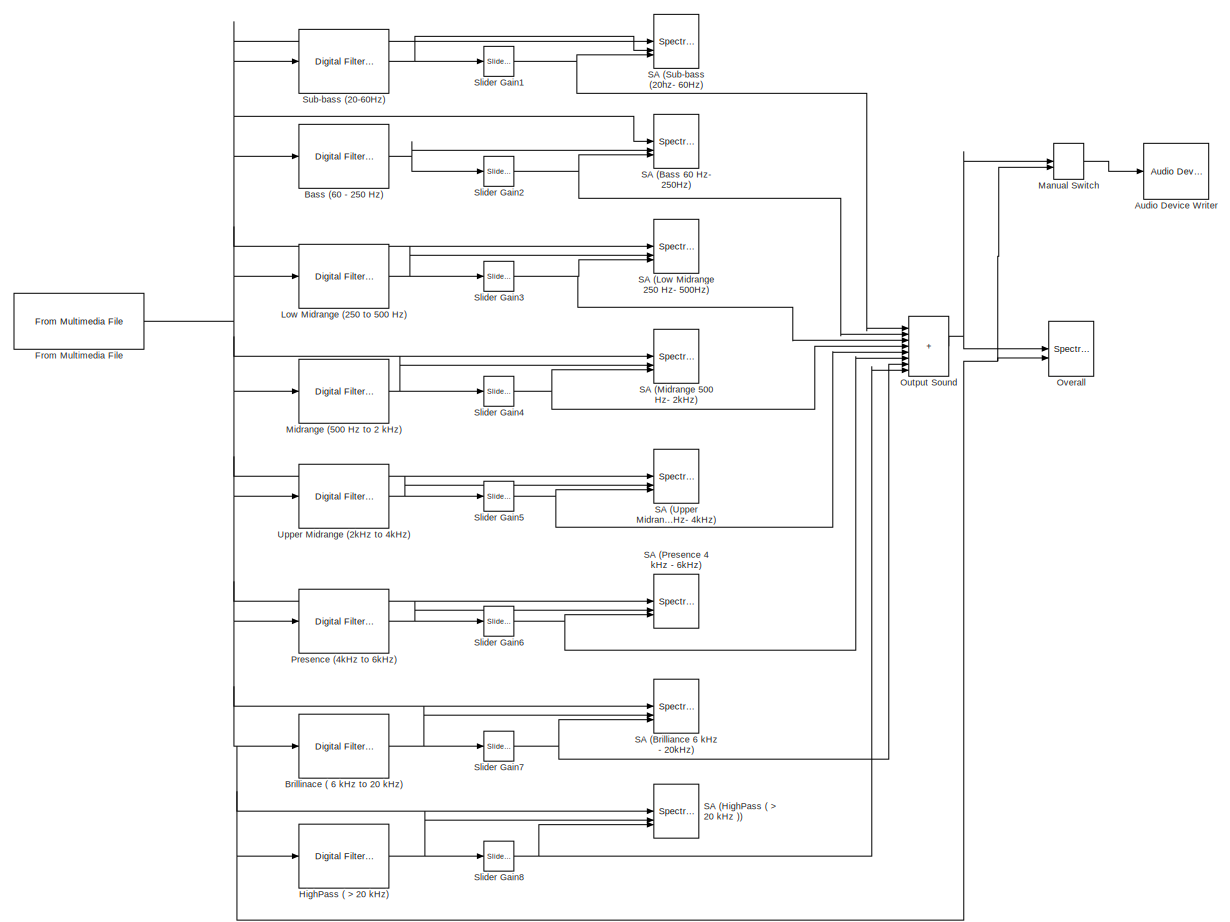
[diagram: root canvas - part 1/1, most of the canvas]
MODEL slx_33b63dce567c
KIND model
CONFIG AbsTol = auto
CONFIG EnableMultiTasking = off
CONFIG FixedStep = auto
CONFIG MaxStep = auto
CONFIG MinStep = auto
CONFIG RelTol = 1e-3
CONFIG SampleTimeConstraint = Unconstrained
CONFIG SolverName = VariableStepAuto
CONFIG StartTime = 0.0
CONFIG StopTime = 30
BLOCK [Reference]  Midrange (500 Hz to 2 kHz)   REF=dspfdesign/Digital
Filter Design
  SourceBlock = dspfdesign/Digital\nFilter Design
  SourceType = Digital Filter Design
  UserDataPersistent = on
BLOCK [Reference] Audio Device Writer  REF=dspsnks4/Audio Device
Writer
  SourceBlock = dspsnks4/Audio Device\nWriter
  SourceType = Audio Device Writer
BLOCK [Reference] Bass (60 - 250 Hz)   REF=dspfdesign/Digital
Filter Design
  SourceBlock = dspfdesign/Digital\nFilter Design
  SourceType = Digital Filter Design
  UserDataPersistent = on
BLOCK [Reference] Brillinace ( 6 kHz to 20 kHz)   REF=dspfdesign/Digital
Filter Design
  SourceBlock = dspfdesign/Digital\nFilter Design
  SourceType = Digital Filter Design
  UserDataPersistent = on
BLOCK [Reference] From Multimedia File  REF=dspvision/From Multimedia File
  SourceBlock = dspvision/From Multimedia File
  SourceType = From Multimedia File
BLOCK [Reference] HighPass ( > 20 kHz)  REF=dspfdesign/Digital
Filter Design
  SourceBlock = dspfdesign/Digital\nFilter Design
  SourceType = Digital Filter Design
  UserDataPersistent = on
BLOCK [Reference] Low Midrange (250 to 500 Hz)   REF=dspfdesign/Digital
Filter Design
  SourceBlock = dspfdesign/Digital\nFilter Design
  SourceType = Digital Filter Design
  UserDataPersistent = on
BLOCK [ManualSwitch] Manual Switch
  CurrentSetting = 0
BLOCK [Sum] Output Sound 
  IconShape = rectangular
  Inputs = +++++++++
BLOCK [SpectrumAnalyzer] Overall 
  AllowFFTLengthLessThanSamplesPerUpdate = on
  AveragingMethod = Running
  CenterFrequency = 11025
  DefaultConfigurationName = spbscopes.SpectrumAnalyzerBlockCfg
  GraphicalSettings = {"GraphicalSettings":{"Style":{"BackgroundColor":[0.12941176470588237,0.12941176470588237,0.12941176470588237],"AxesColor":[0,0,0],"LabelsColor":[0.6862745098039216,0.6862745098039216,0.6862745098039216],"PreserveColors":false,"Visible":[true,true,true,true],"LineStyle":["-","-","-","-"],"LineColor":[[1,1,0.06666666666666667],[0.07450980392156863,0.6235294117647059,1],[1,0.4117647058823529,0.16078...<+1073ch>
  Method = Welch
  NumInputPorts = 2
  PlotAsTwoSidedSpectrum = off
  SampleRate = 44100
  ScopeFrameLocation = window
  ScopeSpecificationString = spbscopes.SpectrumAnalyzerBlockCfg('CurrentConfiguration', extmgr.ConfigurationSet(extmgr.Configuration('Core','General UI',true),extmgr.Configuration('Core','Source UI',true),extmgr.Configuration('Sources','WiredSimulink',true),extmgr.Configuration('Sources','SimulinkEvent',false),extmgr.Configuration('Sources','Simulink',false),extmgr.Configuration('Sources','File',false),extmgr.Configuration('S...<+3600ch>
  ShowLegend = on
  Span = 22050
  StartFrequency = 0
  StopFrequency = 22050
  Visible = on
  WasSavedAsWebScope = on
  WindowPosition = [228.000000,144.000000,1366.000000,691.000000,]
  YLimits = [-147.48569776,30.35882953]
BLOCK [Reference] Presence (4kHz to 6kHz)   REF=dspfdesign/Digital
Filter Design
  SourceBlock = dspfdesign/Digital\nFilter Design
  SourceType = Digital Filter Design
  UserDataPersistent = on
BLOCK [SpectrumAnalyzer] SA (Bass 60 Hz- 250Hz) 
  AllowFFTLengthLessThanSamplesPerUpdate = on
  AveragingMethod = Running
  CenterFrequency = 11025
  DefaultConfigurationName = spbscopes.SpectrumAnalyzerBlockCfg
  GraphicalSettings = {"GraphicalSettings":{"Style":{"BackgroundColor":[0.12941176470588237,0.12941176470588237,0.12941176470588237],"AxesColor":[0,0,0],"LabelsColor":[0.6862745098039216,0.6862745098039216,0.6862745098039216],"PreserveColors":false,"Visible":[true,true,true,true,true,true],"LineStyle":["-","-","-","-","-","-"],"LineColor":[[1,1,0.06666666666666667],[0.07450980392156863,0.6235294117647059,1],[1,0.411764...<+1179ch>  <repeated x8 — deduplicated; at blocks: SA (Bass 60 Hz- 250Hz), SA (Brilliance 6 kHz - 20kHz), SA (HighPass ( > 20 kHz )), SA (Low Midrange 250 Hz- 500Hz), SA (Midrange 500 Hz- 2kHz), SA (Presence 4 kHz - 6kHz), SA (Sub-bass (20hz- 60Hz), SA (Upper Midrange 2 kHz- 4kHz)>
  Method = Welch
  NumInputPorts = 3
  PlotAsTwoSidedSpectrum = off
  SampleRate = 44100
  ScopeFrameLocation = window
  ScopeSpecificationString = spbscopes.SpectrumAnalyzerBlockCfg('CurrentConfiguration', extmgr.ConfigurationSet(extmgr.Configuration('Core','General UI',true),extmgr.Configuration('Core','Source UI',true),extmgr.Configuration('Sources','WiredSimulink',true),extmgr.Configuration('Sources','SimulinkEvent',false),extmgr.Configuration('Sources','Simulink',false),extmgr.Configuration('Sources','File',false),extmgr.Configuration('S...<+3743ch>
  ShowLegend = on
  Span = 22050
  StartFrequency = 0
  StopFrequency = 22050
  Visible = on
  WasSavedAsWebScope = on
  WindowPosition = [28.000000,-33.000000,1366.000000,691.000000,]
  YLimits = [-312.6629906,48.71186207]
BLOCK [SpectrumAnalyzer] SA (Brilliance 6 kHz - 20kHz)
  AllowFFTLengthLessThanSamplesPerUpdate = on
  AveragingMethod = Running
  CenterFrequency = 11025
  DefaultConfigurationName = spbscopes.SpectrumAnalyzerBlockCfg
  Method = Welch
  NumInputPorts = 3
  PlotAsTwoSidedSpectrum = off
  SampleRate = 44100
  ScopeFrameLocation = window
  ScopeSpecificationString = spbscopes.SpectrumAnalyzerBlockCfg('CurrentConfiguration', extmgr.ConfigurationSet(extmgr.Configuration('Core','General UI',true),extmgr.Configuration('Core','Source UI',true),extmgr.Configuration('Sources','WiredSimulink',true),extmgr.Configuration('Sources','SimulinkEvent',false),extmgr.Configuration('Sources','Simulink',false),extmgr.Configuration('Sources','File',false),extmgr.Configuration('S...<+3741ch>  <repeated x3 — deduplicated; at blocks: SA (Brilliance 6 kHz - 20kHz), SA (Low Midrange 250 Hz- 500Hz), SA (Presence 4 kHz - 6kHz)>
  ShowLegend = on
  Span = 22050
  StartFrequency = 0
  StopFrequency = 22050
  Visible = on
  WasSavedAsWebScope = on
  WindowPosition = [1.000000,1.000000,1366.000000,691.000000,]
  YLimits = [-275.52160666,44.58504163]
BLOCK [SpectrumAnalyzer] SA (HighPass ( > 20 kHz )) 
  AllowFFTLengthLessThanSamplesPerUpdate = on
  AveragingMethod = Running
  CenterFrequency = 11025
  DefaultConfigurationName = spbscopes.SpectrumAnalyzerBlockCfg
  Method = Welch
  NumInputPorts = 3
  PlotAsTwoSidedSpectrum = off
  SampleRate = 44100
  ScopeFrameLocation = window
  ScopeSpecificationString = spbscopes.SpectrumAnalyzerBlockCfg('CurrentConfiguration', extmgr.ConfigurationSet(extmgr.Configuration('Core','General UI',true),extmgr.Configuration('Core','Source UI',true),extmgr.Configuration('Sources','WiredSimulink',true),extmgr.Configuration('Sources','SimulinkEvent',false),extmgr.Configuration('Sources','Simulink',false),extmgr.Configuration('Sources','File',false),extmgr.Configuration('S...<+3740ch>
  ShowLegend = on
  Span = 22050
  StartFrequency = 0
  StopFrequency = 22050
  Visible = on
  WasSavedAsWebScope = on
  WindowPosition = [212.000000,139.000000,1366.000000,691.000000,]
  YLimits = [-240.27016905,40.66821523]
BLOCK [SpectrumAnalyzer] SA (Low Midrange 250 Hz- 500Hz)
  AllowFFTLengthLessThanSamplesPerUpdate = on
  AveragingMethod = Running
  CenterFrequency = 11025
  DefaultConfigurationName = spbscopes.SpectrumAnalyzerBlockCfg
  Method = Welch
  NumInputPorts = 3
  PlotAsTwoSidedSpectrum = off
  SampleRate = 44100
  ScopeFrameLocation = window
  ShowLegend = on
  Span = 22050
  StartFrequency = 0
  StopFrequency = 22050
  Visible = on
  WasSavedAsWebScope = on
  WindowPosition = [1.000000,1.000000,1366.000000,691.000000,]
  YLimits = [-268.49401905,43.80419857]
BLOCK [SpectrumAnalyzer] SA (Midrange 500 Hz- 2kHz)
  AllowFFTLengthLessThanSamplesPerUpdate = on
  AveragingMethod = Running
  CenterFrequency = 11025
  DefaultConfigurationName = spbscopes.SpectrumAnalyzerBlockCfg
  Method = Welch
  NumInputPorts = 3
  PlotAsTwoSidedSpectrum = off
  SampleRate = 44100
  ScopeFrameLocation = window
  ScopeSpecificationString = spbscopes.SpectrumAnalyzerBlockCfg('CurrentConfiguration', extmgr.ConfigurationSet(extmgr.Configuration('Core','General UI',true),extmgr.Configuration('Core','Source UI',true),extmgr.Configuration('Sources','WiredSimulink',true),extmgr.Configuration('Sources','SimulinkEvent',false),extmgr.Configuration('Sources','Simulink',false),extmgr.Configuration('Sources','File',false),extmgr.Configuration('S...<+3740ch>
  ShowLegend = on
  Span = 22050
  StartFrequency = 0
  StopFrequency = 22050
  Visible = on
  WasSavedAsWebScope = on
  WindowPosition = [1.000000,1.000000,1366.000000,691.000000,]
  YLimits = [-265.40475231,43.46094671]
BLOCK [SpectrumAnalyzer] SA (Presence 4 kHz - 6kHz)
  AllowFFTLengthLessThanSamplesPerUpdate = on
  AveragingMethod = Running
  CenterFrequency = 11025
  DefaultConfigurationName = spbscopes.SpectrumAnalyzerBlockCfg
  Method = Welch
  NumInputPorts = 3
  PlotAsTwoSidedSpectrum = off
  SampleRate = 44100
  ScopeFrameLocation = window
  ShowLegend = on
  Span = 22050
  StartFrequency = 0
  StopFrequency = 22050
  Visible = on
  WasSavedAsWebScope = on
  WindowPosition = [1.000000,1.000000,1366.000000,691.000000,]
  YLimits = [-309.87524759,48.40211285]
BLOCK [SpectrumAnalyzer] SA (Sub-bass (20hz- 60Hz) 
  AllowFFTLengthLessThanSamplesPerUpdate = on
  AveragingMethod = Running
  AxesScaling = Manual
  CenterFrequency = 11025
  DefaultConfigurationName = spbscopes.SpectrumAnalyzerBlockCfg
  Method = Welch
  NumInputPorts = 3
  PlotAsTwoSidedSpectrum = off
  SampleRate = 44100
  ScopeFrameLocation = window
  ScopeSpecificationString = spbscopes.SpectrumAnalyzerBlockCfg('CurrentConfiguration', extmgr.ConfigurationSet(extmgr.Configuration('Core','General UI',true),extmgr.Configuration('Core','Source UI',true),extmgr.Configuration('Sources','WiredSimulink',true),extmgr.Configuration('Sources','SimulinkEvent',false),extmgr.Configuration('Sources','Simulink',false),extmgr.Configuration('Sources','File',false),extmgr.Configuration('S...<+3779ch>
  ShowLegend = on
  Span = 22050
  StartFrequency = 0
  StopFrequency = 22050
  Visible = on
  WasSavedAsWebScope = on
  WindowPosition = [1.000000,1.000000,1366.000000,644.000000,]
  YLimits = [-304.87441556481588,28.077394020021281]
BLOCK [SpectrumAnalyzer] SA (Upper Midrange 2 kHz- 4kHz)
  AllowFFTLengthLessThanSamplesPerUpdate = on
  AveragingMethod = Running
  AxesScaling = Manual
  CenterFrequency = 11025
  DefaultConfigurationName = spbscopes.SpectrumAnalyzerBlockCfg
  Method = Welch
  NumInputPorts = 3
  PlotAsTwoSidedSpectrum = off
  SampleRate = 44100
  ScopeFrameLocation = window
  ScopeSpecificationString = spbscopes.SpectrumAnalyzerBlockCfg('CurrentConfiguration', extmgr.ConfigurationSet(extmgr.Configuration('Core','General UI',true),extmgr.Configuration('Core','Source UI',true),extmgr.Configuration('Sources','WiredSimulink',true),extmgr.Configuration('Sources','SimulinkEvent',false),extmgr.Configuration('Sources','Simulink',false),extmgr.Configuration('Sources','File',false),extmgr.Configuration('S...<+3786ch>
  ShowLegend = on
  Span = 22050
  StartFrequency = 0
  StopFrequency = 22050
  Visible = on
  WasSavedAsWebScope = on
  WindowPosition = [119.000000,184.000000,1366.000000,669.000000,]
  YLimits = [-222.63094285594943,26.674904511119497]
BLOCK [Reference] Slider Gain1  REF=simulink/Math
Operations/Slider
Gain
  SourceBlock = simulink/Math\nOperations/Slider\nGain
  SourceType = Slider Gain
BLOCK [Reference] Slider Gain2  REF=simulink/Math
Operations/Slider
Gain
  SourceBlock = simulink/Math\nOperations/Slider\nGain
  SourceType = Slider Gain
BLOCK [Reference] Slider Gain3  REF=simulink/Math
Operations/Slider
Gain
  SourceBlock = simulink/Math\nOperations/Slider\nGain
  SourceType = Slider Gain
BLOCK [Reference] Slider Gain4  REF=simulink/Math
Operations/Slider
Gain
  SourceBlock = simulink/Math\nOperations/Slider\nGain
  SourceType = Slider Gain
BLOCK [Reference] Slider Gain5  REF=simulink/Math
Operations/Slider
Gain
  SourceBlock = simulink/Math\nOperations/Slider\nGain
  SourceType = Slider Gain
BLOCK [Reference] Slider Gain6  REF=simulink/Math
Operations/Slider
Gain
  SourceBlock = simulink/Math\nOperations/Slider\nGain
  SourceType = Slider Gain
BLOCK [Reference] Slider Gain7  REF=simulink/Math
Operations/Slider
Gain
  SourceBlock = simulink/Math\nOperations/Slider\nGain
  SourceType = Slider Gain
BLOCK [Reference] Slider Gain8  REF=simulink/Math
Operations/Slider
Gain
  SourceBlock = simulink/Math\nOperations/Slider\nGain
  SourceType = Slider Gain
BLOCK [Reference] Sub-bass (20-60Hz)   REF=dspfdesign/Digital
Filter Design
  SourceBlock = dspfdesign/Digital\nFilter Design
  SourceType = Digital Filter Design
  UserDataPersistent = on
BLOCK [Reference] Upper Midrange (2kHz to 4kHz)  REF=dspfdesign/Digital
Filter Design
  SourceBlock = dspfdesign/Digital\nFilter Design
  SourceType = Digital Filter Design
  UserDataPersistent = on
NET  Midrange (500 Hz to 2 kHz) :1 -> SA (Midrange 500 Hz- 2kHz):2, Slider Gain4:1
NET Bass (60 - 250 Hz) :1 -> SA (Bass 60 Hz- 250Hz) :2, Slider Gain2:1
NET Brillinace ( 6 kHz to 20 kHz) :1 -> SA (Brilliance 6 kHz - 20kHz):2, Slider Gain7:1
NET From Multimedia File:1 ->  Midrange (500 Hz to 2 kHz) :1, Bass (60 - 250 Hz) :1, Brillinace ( 6 kHz to 20 kHz) :1, HighPass ( > 20 kHz):1, Low Midrange (250 to 500 Hz) :1, Manual Switch:2, Overall :2, Presence (4kHz to 6kHz) :1, SA (Bass 60 Hz- 250Hz) :1, SA (Brilliance 6 kHz - 20kHz):1, SA (HighPass ( > 20 kHz )) :1, SA (Low Midrange 250 Hz- 500Hz):1, SA (Midrange 500 Hz- 2kHz):1, SA (Presence 4 kHz - 6kHz):1, SA (Sub-bass (20hz- 60Hz) :1, SA (Upper Midrange 2 kHz- 4kHz):1, Sub-bass (20-60Hz) :1, Upper Midrange (2kHz to 4kHz):1
NET HighPass ( > 20 kHz):1 -> SA (HighPass ( > 20 kHz )) :2, Slider Gain8:1
NET Low Midrange (250 to 500 Hz) :1 -> SA (Low Midrange 250 Hz- 500Hz):2, Slider Gain3:1
LINE Manual Switch:1 -> Audio Device Writer:1
NET Output Sound :1 -> Manual Switch:1, Overall :1
NET Presence (4kHz to 6kHz) :1 -> SA (Presence 4 kHz - 6kHz):2, Slider Gain6:1
NET Slider Gain1:1 -> Output Sound :2, SA (Sub-bass (20hz- 60Hz) :3
NET Slider Gain2:1 -> Output Sound :3, SA (Bass 60 Hz- 250Hz) :3
NET Slider Gain3:1 -> Output Sound :4, SA (Low Midrange 250 Hz- 500Hz):3
NET Slider Gain4:1 -> Output Sound :5, SA (Midrange 500 Hz- 2kHz):3
NET Slider Gain5:1 -> Output Sound :6, SA (Upper Midrange 2 kHz- 4kHz):3
NET Slider Gain6:1 -> Output Sound :7, SA (Presence 4 kHz - 6kHz):3
NET Slider Gain7:1 -> Output Sound :8, SA (Brilliance 6 kHz - 20kHz):3
NET Slider Gain8:1 -> Output Sound :9, SA (HighPass ( > 20 kHz )) :3
NET Sub-bass (20-60Hz) :1 -> SA (Sub-bass (20hz- 60Hz) :2, Slider Gain1:1
NET Upper Midrange (2kHz to 4kHz):1 -> SA (Upper Midrange 2 kHz- 4kHz):2, Slider Gain5:1
note: NET lines group one-source signal fan-out (src -> all destinations, sorted); 1:1 wires keep LINE
